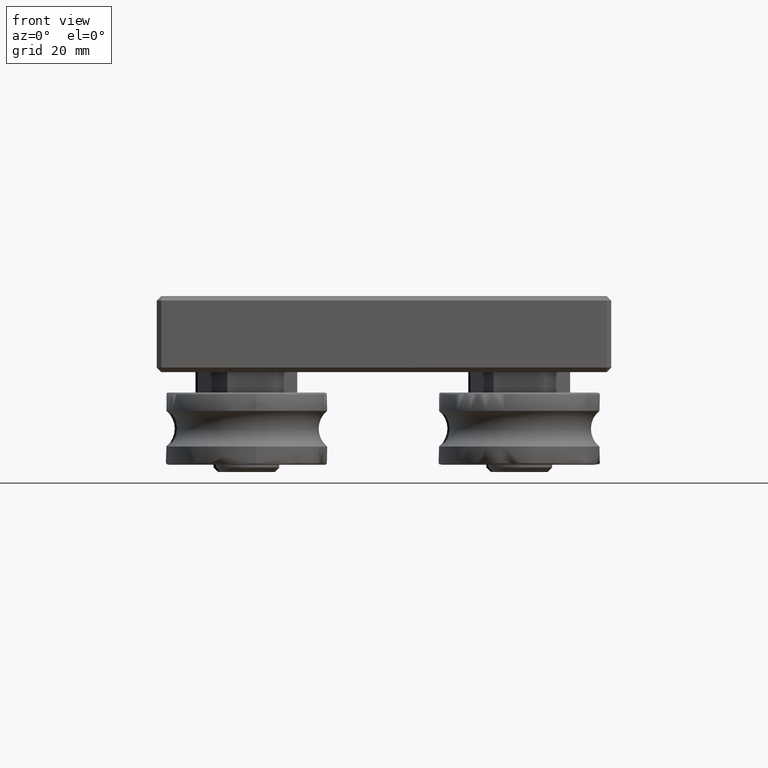
[diagram: clean part render]
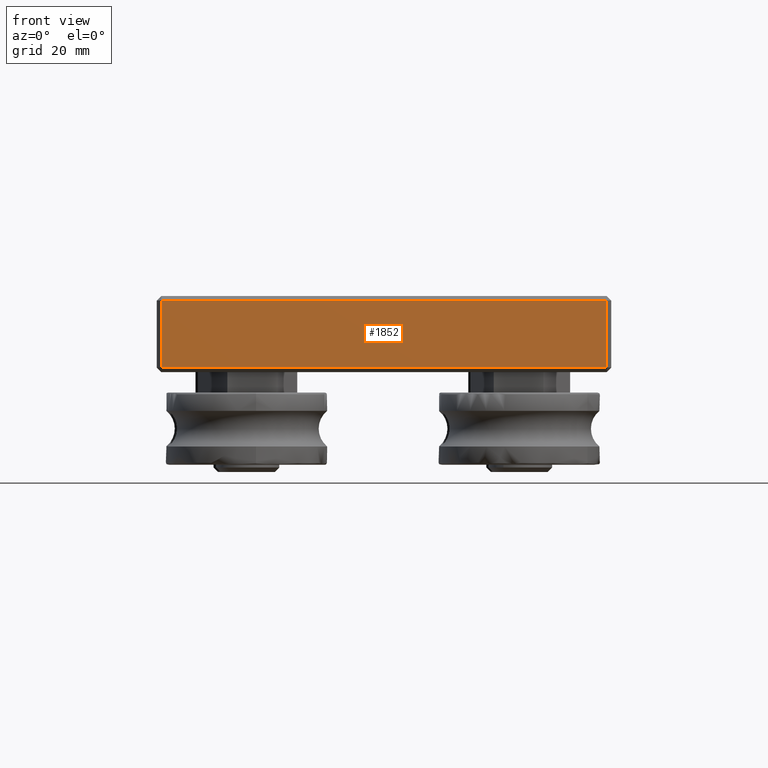
[diagram: same view with one face highlighted and labeled with its STEP entity id]
A machine part, front view. The second image highlights one B-rep face of the part: STEP entity #1852.
In plain terms, the highlighted planar face has unit normal (0, -1, 0).
Its self-contained STEP definition (entity closure, byte-faithful):
#343=FACE_OUTER_BOUND('',#473,.T.);
#473=EDGE_LOOP('',(#1344,#1345,#1346,#1347));
#617=LINE('',#2911,#749);
#620=LINE('',#2915,#752);
#636=LINE('',#2942,#768);
#639=LINE('',#2946,#771);
#749=VECTOR('',#2309,10.);
#752=VECTOR('',#2314,10.);
#768=VECTOR('',#2346,10.);
#771=VECTOR('',#2351,10.);
#858=VERTEX_POINT('',#2859);
#866=VERTEX_POINT('',#2876);
#867=VERTEX_POINT('',#2880);
#878=VERTEX_POINT('',#2907);
#1028=EDGE_CURVE('',#867,#878,#617,.T.);
#1031=EDGE_CURVE('',#878,#866,#620,.T.);
#1047=EDGE_CURVE('',#858,#867,#636,.T.);
#1050=EDGE_CURVE('',#866,#858,#639,.T.);
#1344=ORIENTED_EDGE('',*,*,#1028,.F.);
#1345=ORIENTED_EDGE('',*,*,#1047,.F.);
#1346=ORIENTED_EDGE('',*,*,#1050,.F.);
#1347=ORIENTED_EDGE('',*,*,#1031,.F.);
#1780=PLANE('',#2066);
#1852=ADVANCED_FACE('',(#343),#1780,.T.);
#2066=AXIS2_PLACEMENT_3D('',#2968,#2376,#2377);
#2309=DIRECTION('',(-1.,0.,0.));
#2314=DIRECTION('',(0.,1.,0.));
#2346=DIRECTION('',(0.,-1.,0.));
#2351=DIRECTION('',(1.,0.,0.));
#2376=DIRECTION('center_axis',(0.,0.,1.));
#2377=DIRECTION('ref_axis',(1.,0.,0.));
#2859=CARTESIAN_POINT('',(49.,15.75,60.));
#2876=CARTESIAN_POINT('',(-49.,15.75,60.));
#2880=CARTESIAN_POINT('',(49.,1.,60.));
#2907=CARTESIAN_POINT('',(-49.,1.,60.));
#2911=CARTESIAN_POINT('',(-25.,1.,60.));
#2915=CARTESIAN_POINT('',(-49.,0.,60.));
#2942=CARTESIAN_POINT('',(49.,0.,60.));
#2946=CARTESIAN_POINT('',(-25.,15.75,60.));
#2968=CARTESIAN_POINT('Origin',(-50.,0.,60.));